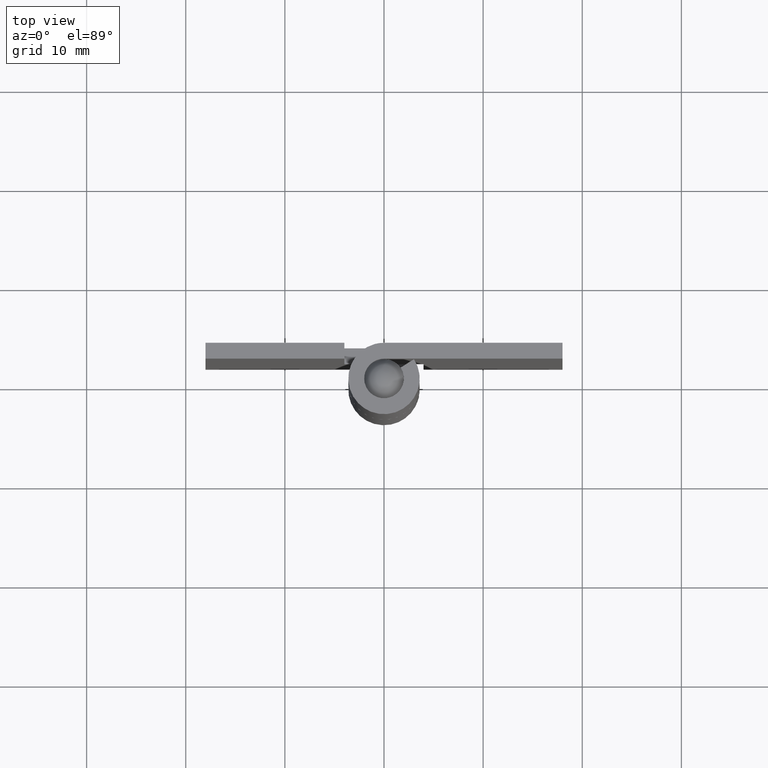
[diagram: clean part render]
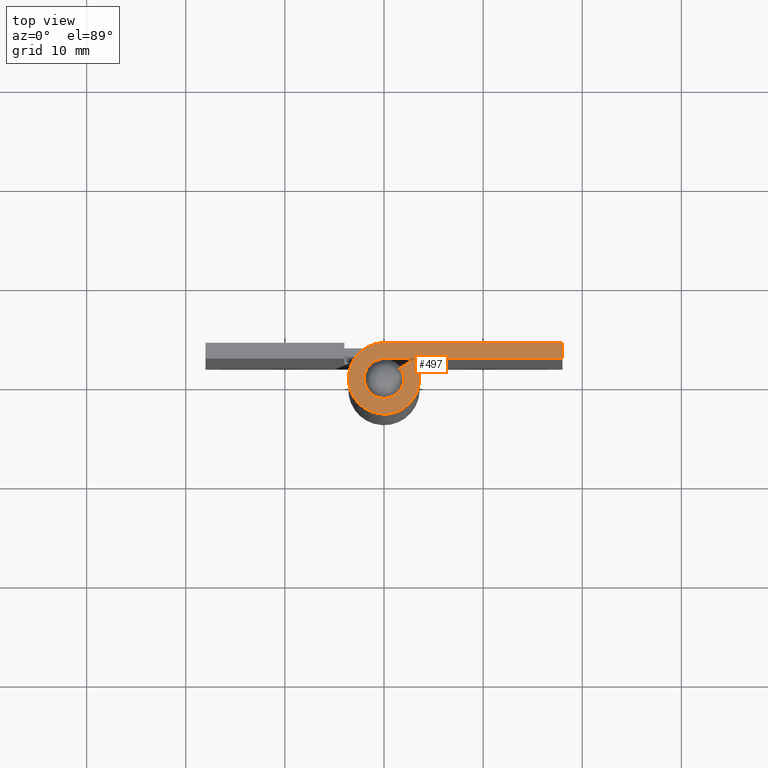
[diagram: same view with one face highlighted and labeled with its STEP entity id]
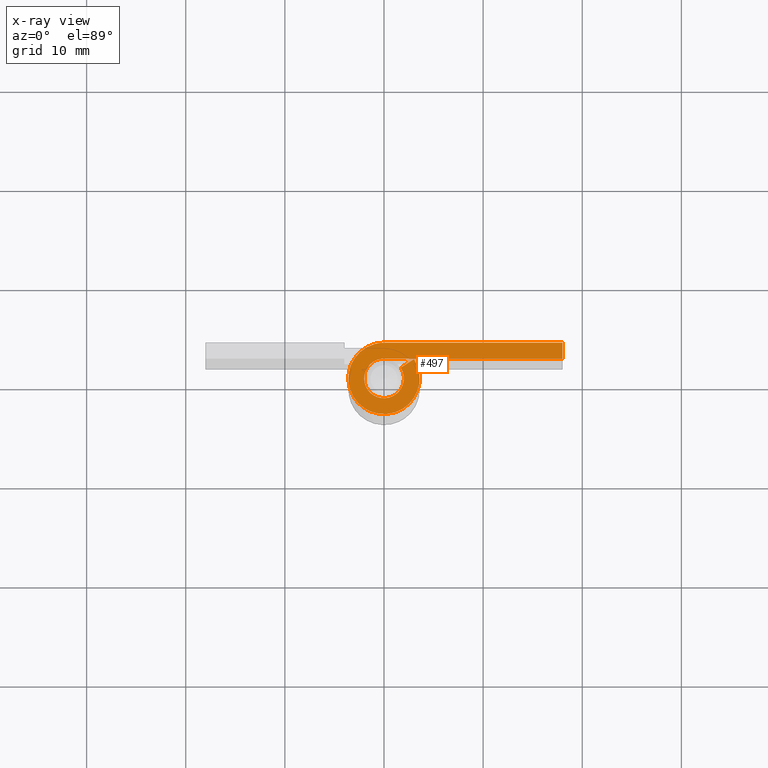
[diagram: x-ray of the same camera — body ghosted, the highlighted face saturated]
A machine part, top view. The second image highlights one B-rep face of the part: STEP entity #497.
The next image is the same camera in x-ray: the body ghosted, the highlighted face saturated — about 0% of this face is hidden behind the body in this view.
In plain terms, the highlighted face is a freeform B-spline surface patch.
Its self-contained STEP definition (entity closure, byte-faithful):
#420=CARTESIAN_POINT('',(-4.678473124545302,-3.957971905411489,64.000007999999994));
#421=CARTESIAN_POINT('',(19.078899279957060,-3.957971905411489,64.000007999999994));
#422=CARTESIAN_POINT('',(-4.678473124545302,3.959558727219332,64.000007999999994));
#423=CARTESIAN_POINT('',(19.078899279957060,3.959558727219332,64.000007999999994));
#424=B_SPLINE_SURFACE_WITH_KNOTS('',1,1,((#420,#422),(#421,#423)),.UNSPECIFIED.,.F.,.F.,.U.,(2,2),(2,2),(0.0,23.757372404502370),(0.0,7.917530632630820),.UNSPECIFIED.);
#425=CARTESIAN_POINT('',(1.681186750152665,1.083333333333334,64.000008000000093));
#426=VERTEX_POINT('',#425);
#427=CARTESIAN_POINT('',(0.0,2.0,64.000008000000093));
#428=VERTEX_POINT('',#427);
#429=CARTESIAN_POINT('',(1.681186750152667,1.083333333333335,64.000008000000093));
#430=CARTESIAN_POINT('',(2.523010718282847,-0.223063560064879,64.000008000000093));
#431=CARTESIAN_POINT('',(1.465035332114957,-1.361496043202043,64.000008000000093));
#432=CARTESIAN_POINT('',(0.407059945947065,-2.499928526339208,64.000008000000093));
#433=CARTESIAN_POINT('',(-0.957427107756338,-1.755942292142124,64.000008000000093));
#434=CARTESIAN_POINT('',(-2.321914161459740,-1.011956057945040,64.000008000000093));
#435=CARTESIAN_POINT('',(-1.938025359003882,0.494021971027480,64.000008000000093));
#436=CARTESIAN_POINT('',(-1.554136556548024,2.0,64.000008000000093));
#437=CARTESIAN_POINT('',(0.0,2.0,64.000008000000093));
#445=(BOUNDED_CURVE()B_SPLINE_CURVE(2,(#429,#430,#431,#432,#433,#434,#435,#436,#437),.UNSPECIFIED.,.F.,.U.)B_SPLINE_CURVE_WITH_KNOTS((3,2,2,2,3),(0.0,0.250000000000000,0.500000000000000,0.750000000000000,1.0),.UNSPECIFIED.)CURVE()GEOMETRIC_REPRESENTATION_ITEM()RATIONAL_B_SPLINE_CURVE((1.0,0.789623639943024,1.0,0.789623639943024,1.0,0.789623639943024,1.0,0.789623639943024,1.0))REPRESENTATION_ITEM(''));
#446=EDGE_CURVE('',#426,#428,#445,.T.);
#447=ORIENTED_EDGE('',*,*,#446,.T.);
#448=CARTESIAN_POINT('',(18.0,2.0,64.000008000000093));
#449=VERTEX_POINT('',#448);
#450=CARTESIAN_POINT('',(0.0,2.0,64.000008000000093));
#451=CARTESIAN_POINT('',(18.0,2.0,64.000008000000093));
#452=QUASI_UNIFORM_CURVE('',1,(#450,#451),.UNSPECIFIED.,.F.,.U.);
#453=EDGE_CURVE('',#428,#449,#452,.T.);
#454=ORIENTED_EDGE('',*,*,#453,.T.);
#455=CARTESIAN_POINT('',(18.0,3.599998000000000,64.000008000000093));
#456=VERTEX_POINT('',#455);
#457=CARTESIAN_POINT('',(18.0,2.0,64.000008000000093));
#458=CARTESIAN_POINT('',(18.0,3.599998000000000,64.000008000000093));
#459=QUASI_UNIFORM_CURVE('',1,(#457,#458),.UNSPECIFIED.,.F.,.U.);
#460=EDGE_CURVE('',#449,#456,#459,.T.);
#461=ORIENTED_EDGE('',*,*,#460,.T.);
#462=CARTESIAN_POINT('',(-0.003794732665984,3.599998000000000,64.000008000000093));
#463=VERTEX_POINT('',#462);
#464=CARTESIAN_POINT('',(18.0,3.599998000000000,64.000008000000093));
#465=CARTESIAN_POINT('',(-0.003794732665984,3.599998000000000,64.000008000000093));
#466=QUASI_UNIFORM_CURVE('',1,(#464,#465),.UNSPECIFIED.,.F.,.U.);
#467=EDGE_CURVE('',#456,#463,#466,.T.);
#468=ORIENTED_EDGE('',*,*,#467,.T.);
#469=CARTESIAN_POINT('',(3.026136150274800,1.950000000000000,64.000008000000093));
#470=VERTEX_POINT('',#469);
#471=CARTESIAN_POINT('',(3.026136150274802,1.950000000000000,64.000008000000093));
#472=CARTESIAN_POINT('',(4.541007253605536,-0.400874978869648,64.000008000000093));
#473=CARTESIAN_POINT('',(2.637709320543042,-2.449997865370572,64.000008000000093));
#474=CARTESIAN_POINT('',(0.734411387480545,-4.499120751871497,64.000008000000093));
#475=CARTESIAN_POINT('',(-1.721702721479355,-3.161603981976646,64.000008000000093));
#476=CARTESIAN_POINT('',(-4.177816830439255,-1.824087212081795,64.000008000000093));
#477=CARTESIAN_POINT('',(-3.489147561616325,0.886481411687160,64.000008000000093));
#478=CARTESIAN_POINT('',(-2.800478292793393,3.597050035456119,64.000008000000093));
#479=CARTESIAN_POINT('',(-0.003794732665985,3.599997999999999,64.000008000000093));
#487=(BOUNDED_CURVE()B_SPLINE_CURVE(2,(#471,#472,#473,#474,#475,#476,#477,#478,#479),.UNSPECIFIED.,.F.,.U.)B_SPLINE_CURVE_WITH_KNOTS((3,2,2,2,3),(0.0,0.250000000000000,0.500000000000000,0.750000000000000,1.0),.UNSPECIFIED.)CURVE()GEOMETRIC_REPRESENTATION_ITEM()RATIONAL_B_SPLINE_CURVE((1.0,0.789704480868727,1.0,0.789704480868727,1.0,0.789704480868727,1.0,0.789704480868727,1.0))REPRESENTATION_ITEM(''));
#488=EDGE_CURVE('',#470,#463,#487,.T.);
#489=ORIENTED_EDGE('',*,*,#488,.F.);
#490=CARTESIAN_POINT('',(3.026136150274800,1.950000000000000,64.000008000000093));
#491=CARTESIAN_POINT('',(1.681186750152665,1.083333333333334,64.000008000000093));
#492=QUASI_UNIFORM_CURVE('',1,(#490,#491),.UNSPECIFIED.,.F.,.U.);
#493=EDGE_CURVE('',#470,#426,#492,.T.);
#494=ORIENTED_EDGE('',*,*,#493,.T.);
#495=EDGE_LOOP('',(#447,#454,#461,#468,#489,#494));
#496=FACE_OUTER_BOUND('',#495,.T.);
#497=ADVANCED_FACE('',(#496),#424,.T.);